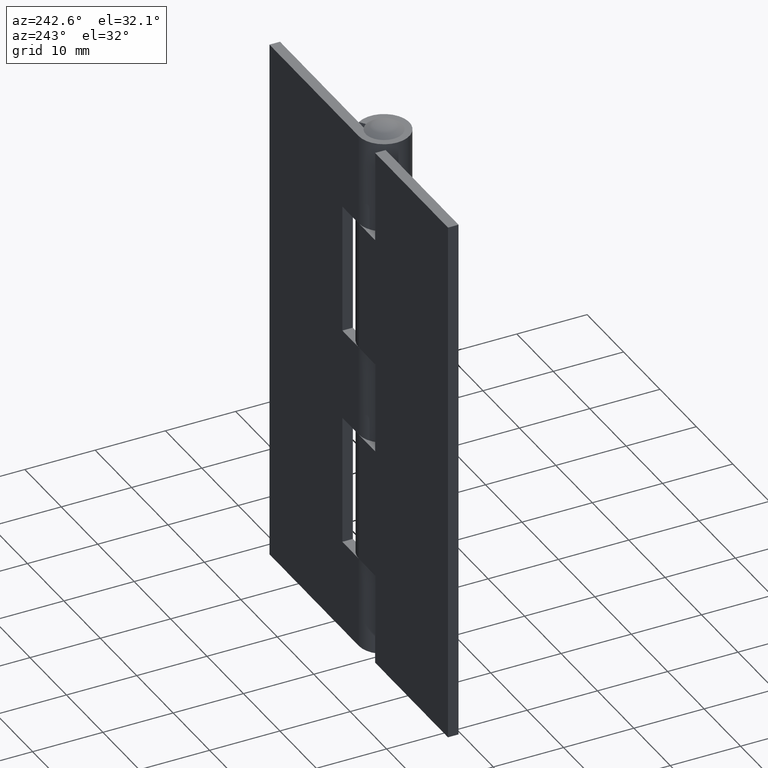
[diagram: clean part render]
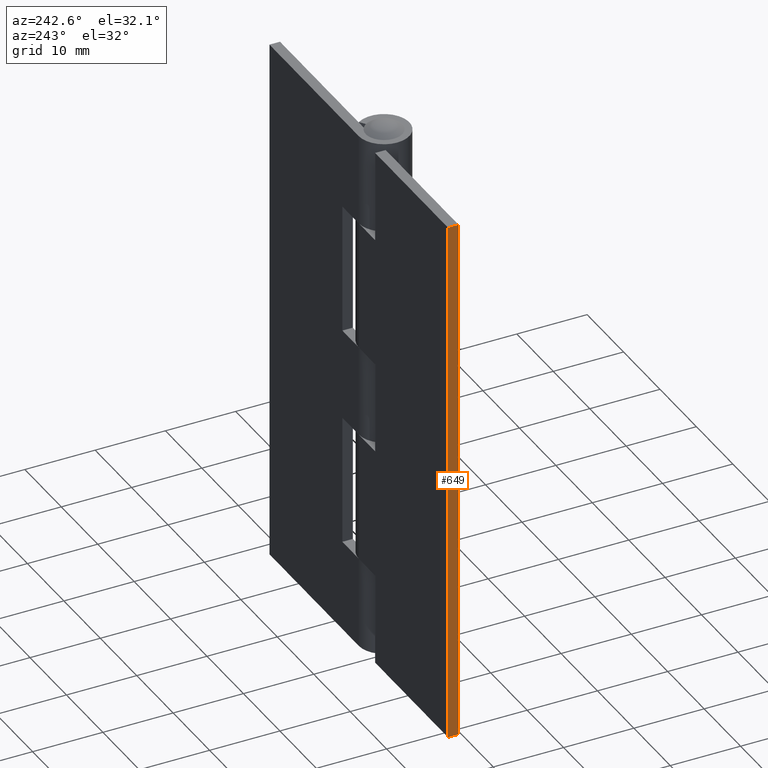
[diagram: same view with one face highlighted and labeled with its STEP entity id]
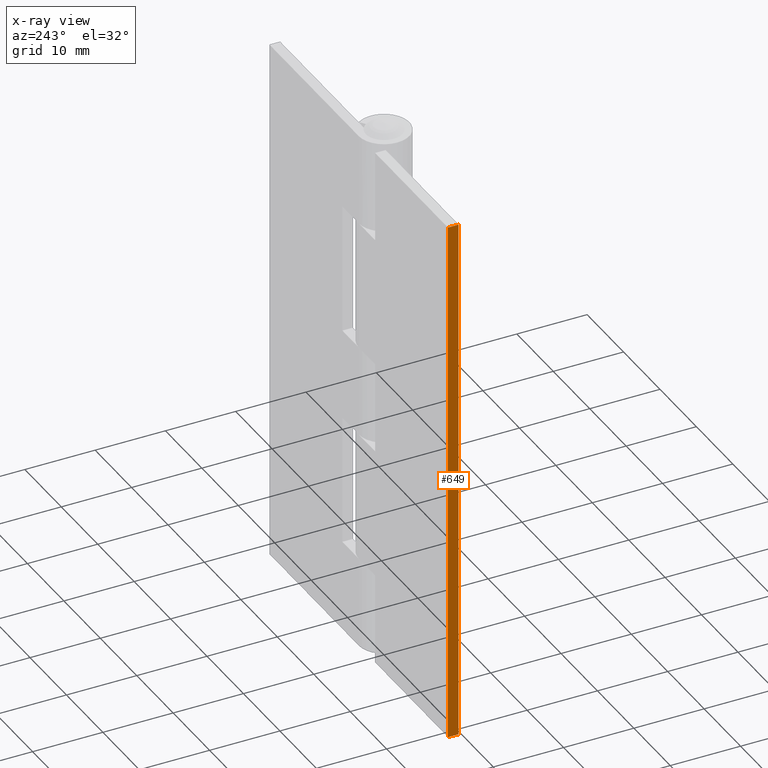
[diagram: x-ray of the same camera — body ghosted, the highlighted face saturated]
A machine part, auxiliary view. The second image highlights one B-rep face of the part: STEP entity #649.
The next image is the same camera in x-ray: the body ghosted, the highlighted face saturated — about 0% of this face is hidden behind the body in this view.
In plain terms, the highlighted face is a freeform B-spline surface patch.
Its self-contained STEP definition (entity closure, byte-faithful):
#275=CARTESIAN_POINT('',(-24.500000000000000,2.099998000000030,76.0));
#276=VERTEX_POINT('',#275);
#282=CARTESIAN_POINT('',(-24.500000000000000,2.099998000000030,0.0));
#283=VERTEX_POINT('',#282);
#284=CARTESIAN_POINT('',(-24.500000000000000,2.099998000000030,76.0));
#285=CARTESIAN_POINT('',(-24.500000000000000,2.099998000000030,0.0));
#286=QUASI_UNIFORM_CURVE('',1,(#284,#285),.UNSPECIFIED.,.F.,.U.);
#287=EDGE_CURVE('',#276,#283,#286,.T.);
#622=CARTESIAN_POINT('',(-24.500000000000000,2.025073002907323,79.796199852697242));
#623=CARTESIAN_POINT('',(-24.500000000000000,2.025073002907323,-3.796201891176106));
#624=CARTESIAN_POINT('',(-24.500000000000000,3.674923037325844,79.796199852697242));
#625=CARTESIAN_POINT('',(-24.500000000000000,3.674923037325844,-3.796201891176106));
#626=B_SPLINE_SURFACE_WITH_KNOTS('',1,1,((#622,#624),(#623,#625)),.UNSPECIFIED.,.F.,.F.,.U.,(2,2),(2,2),(0.0,83.592401743873353),(0.041708334948495,0.958291687403247),.UNSPECIFIED.);
#627=CARTESIAN_POINT('',(-24.500000000000000,3.599998000000000,0.0));
#628=VERTEX_POINT('',#627);
#629=CARTESIAN_POINT('',(-24.500000000000000,3.599998000000000,0.0));
#630=CARTESIAN_POINT('',(-24.500000000000000,2.099998000000030,0.0));
#631=QUASI_UNIFORM_CURVE('',1,(#629,#630),.UNSPECIFIED.,.F.,.U.);
#632=EDGE_CURVE('',#628,#283,#631,.T.);
#633=ORIENTED_EDGE('',*,*,#632,.T.);
#634=ORIENTED_EDGE('',*,*,#287,.F.);
#635=CARTESIAN_POINT('',(-24.500000000000000,3.599998000000000,76.0));
#636=VERTEX_POINT('',#635);
#637=CARTESIAN_POINT('',(-24.500000000000000,3.599998000000000,76.0));
#638=CARTESIAN_POINT('',(-24.500000000000000,2.099998000000030,76.0));
#639=QUASI_UNIFORM_CURVE('',1,(#637,#638),.UNSPECIFIED.,.F.,.U.);
#640=EDGE_CURVE('',#636,#276,#639,.T.);
#641=ORIENTED_EDGE('',*,*,#640,.F.);
#642=CARTESIAN_POINT('',(-24.500000000000000,3.599998000000000,76.0));
#643=CARTESIAN_POINT('',(-24.500000000000000,3.599998000000000,0.0));
#644=QUASI_UNIFORM_CURVE('',1,(#642,#643),.UNSPECIFIED.,.F.,.U.);
#645=EDGE_CURVE('',#636,#628,#644,.T.);
#646=ORIENTED_EDGE('',*,*,#645,.T.);
#647=EDGE_LOOP('',(#633,#634,#641,#646));
#648=FACE_OUTER_BOUND('',#647,.T.);
#649=ADVANCED_FACE('',(#648),#626,.F.);